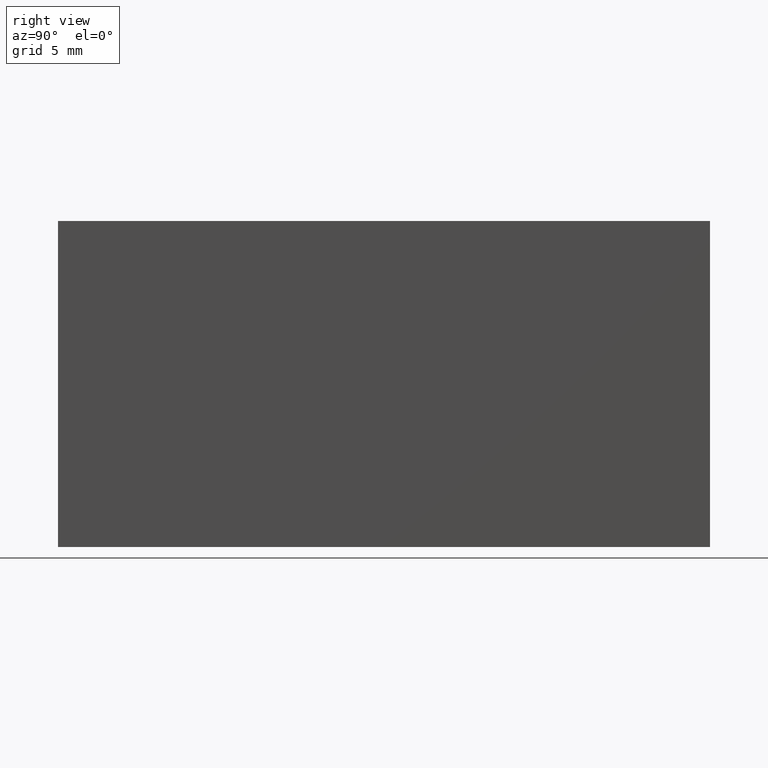
[diagram: clean part render]
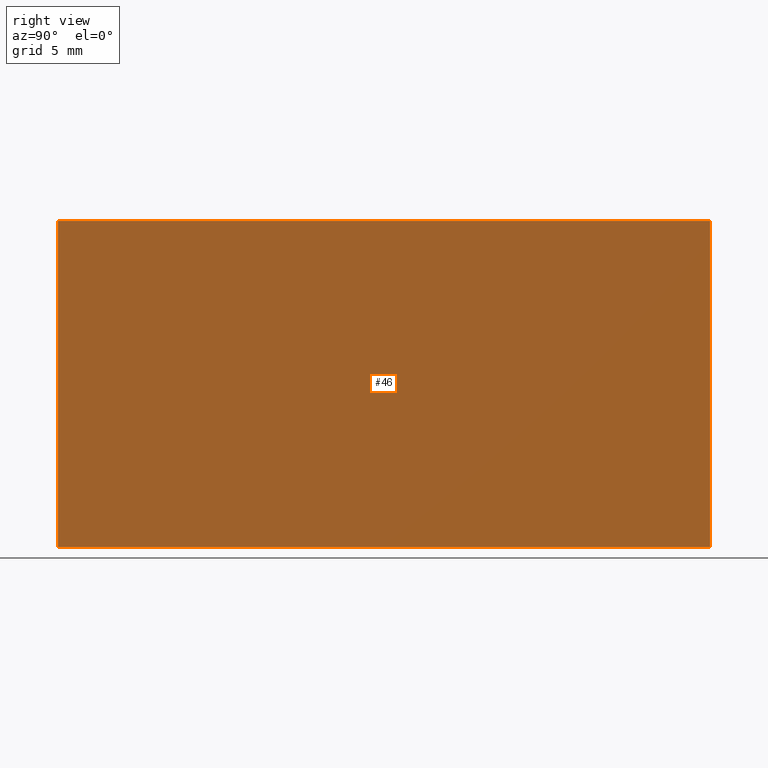
[diagram: same view with one face highlighted and labeled with its STEP entity id]
A machine part, right view. The second image highlights one B-rep face of the part: STEP entity #46.
In plain terms, the highlighted planar face has unit normal (-1, 0, 0).
Its self-contained STEP definition (entity closure, byte-faithful):
#16 = LINE ( 'NONE', #134, #50 ) ;
#18 = VERTEX_POINT ( 'NONE', #139 ) ;
#24 = EDGE_CURVE ( 'NONE', #36, #97, #16, .T. ) ;
#30 = DIRECTION ( 'NONE',  ( -6.123233995736766000E-017, -0.0000000000000000000, -1.000000000000000000 ) ) ;
#31 = ORIENTED_EDGE ( 'NONE', *, *, #24, .T. ) ;
#36 = VERTEX_POINT ( 'NONE', #166 ) ;
#38 = VECTOR ( 'NONE', #168, 1000.000000000000000 ) ;
#40 = VECTOR ( 'NONE', #30, 1000.000000000000000 ) ;
#46 = ADVANCED_FACE ( 'NONE', ( #131 ), #167, .F. ) ;
#50 = VECTOR ( 'NONE', #124, 1000.000000000000000 ) ;
#56 = EDGE_CURVE ( 'NONE', #97, #108, #138, .T. ) ;
#62 = CARTESIAN_POINT ( 'NONE',  ( 0.0000000000000000000, 0.0000000000000000000, 0.0000000000000000000 ) ) ;
#64 = CARTESIAN_POINT ( 'NONE',  ( 0.0000000000000000000, 40.00000000000000000, 0.0000000000000000000 ) ) ;
#75 = EDGE_LOOP ( 'NONE', ( #78, #91, #132, #31 ) ) ;
#78 = ORIENTED_EDGE ( 'NONE', *, *, #56, .T. ) ;
#91 = ORIENTED_EDGE ( 'NONE', *, *, #130, .F. ) ;
#97 = VERTEX_POINT ( 'NONE', #135 ) ;
#103 = DIRECTION ( 'NONE',  ( -6.123233995736766000E-017, -0.0000000000000000000, -1.000000000000000000 ) ) ;
#108 = VERTEX_POINT ( 'NONE', #62 ) ;
#110 = VECTOR ( 'NONE', #103, 1000.000000000000000 ) ;
#111 = CARTESIAN_POINT ( 'NONE',  ( 0.0000000000000000000, 0.0000000000000000000, 0.0000000000000000000 ) ) ;
#122 = CARTESIAN_POINT ( 'NONE',  ( 0.0000000000000000000, 40.00000000000000000, 0.0000000000000000000 ) ) ;
#124 = DIRECTION ( 'NONE',  ( -0.0000000000000000000, -1.000000000000000000, -0.0000000000000000000 ) ) ;
#130 = EDGE_CURVE ( 'NONE', #18, #108, #148, .T. ) ;
#131 = FACE_OUTER_BOUND ( 'NONE', #75, .T. ) ;
#132 = ORIENTED_EDGE ( 'NONE', *, *, #170, .F. ) ;
#134 = CARTESIAN_POINT ( 'NONE',  ( 1.224646799147353300E-015, 40.00000000000000000, 20.00000000000000000 ) ) ;
#135 = CARTESIAN_POINT ( 'NONE',  ( 1.224646799147353300E-015, 0.0000000000000000000, 20.00000000000000000 ) ) ;
#138 = LINE ( 'NONE', #111, #110 ) ;
#139 = CARTESIAN_POINT ( 'NONE',  ( 0.0000000000000000000, 40.00000000000000000, 0.0000000000000000000 ) ) ;
#141 = CARTESIAN_POINT ( 'NONE',  ( 0.0000000000000000000, 40.00000000000000000, 0.0000000000000000000 ) ) ;
#144 = AXIS2_PLACEMENT_3D ( 'NONE', #122, #165, #149 ) ;
#148 = LINE ( 'NONE', #64, #38 ) ;
#149 = DIRECTION ( 'NONE',  ( 6.123233995736766000E-017, 0.0000000000000000000, 1.000000000000000000 ) ) ;
#165 = DIRECTION ( 'NONE',  ( -1.000000000000000000, 0.0000000000000000000, 6.123233995736766000E-017 ) ) ;
#166 = CARTESIAN_POINT ( 'NONE',  ( 1.224646799147353300E-015, 40.00000000000000000, 20.00000000000000000 ) ) ;
#167 = PLANE ( 'NONE',  #144 ) ;
#168 = DIRECTION ( 'NONE',  ( -0.0000000000000000000, -1.000000000000000000, -0.0000000000000000000 ) ) ;
#170 = EDGE_CURVE ( 'NONE', #36, #18, #199, .T. ) ;
#199 = LINE ( 'NONE', #141, #40 ) ;